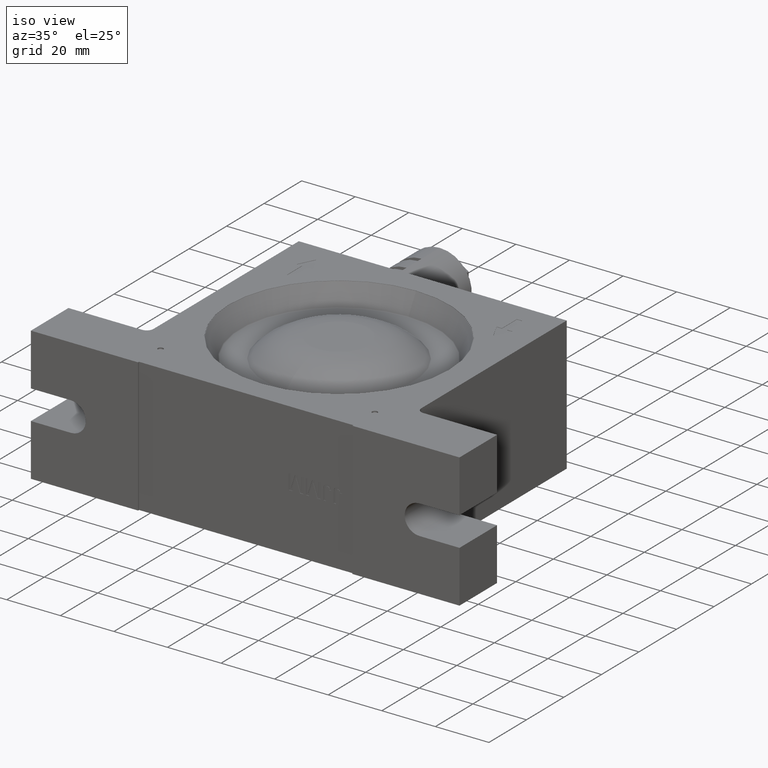
[diagram: clean part render]
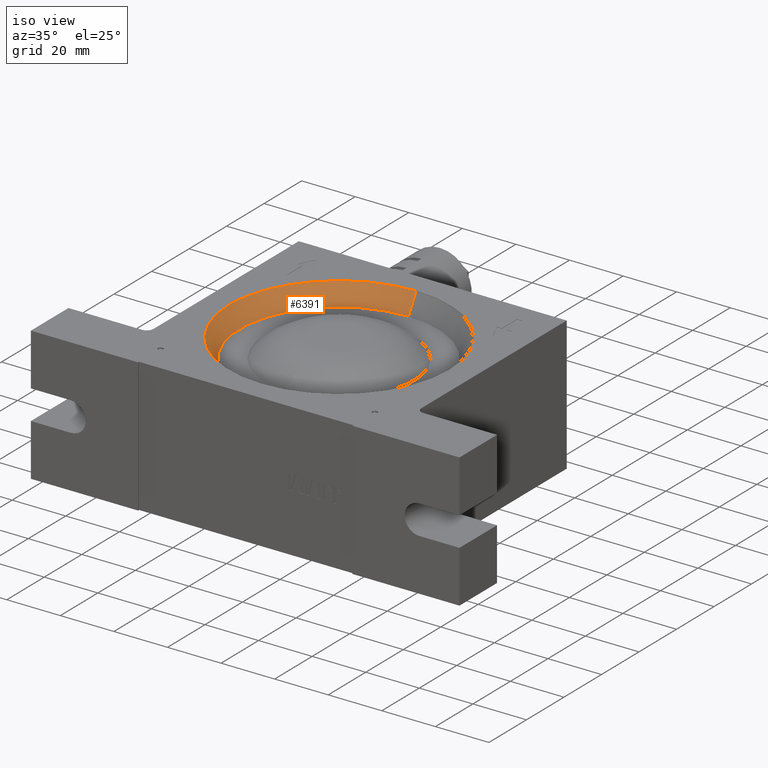
[diagram: same view with one face highlighted and labeled with its STEP entity id]
A machine part, iso view. The second image highlights one B-rep face of the part: STEP entity #6391.
In plain terms, the highlighted conical surface has half-angle 30 deg.
Its self-contained STEP definition (entity closure, byte-faithful):
#104 = LINE ( 'NONE', #6241, #280 ) ;
#280 = VECTOR ( 'NONE', #4174, 1000.000000000000000 ) ;
#383 = VERTEX_POINT ( 'NONE', #2256 ) ;
#533 = ORIENTED_EDGE ( 'NONE', *, *, #1843, .T. ) ;
#637 = ORIENTED_EDGE ( 'NONE', *, *, #3783, .T. ) ;
#649 = DIRECTION ( 'NONE',  ( 9.071690638293561100E-017, 0.4999999999999996100, 0.8660254037844389300 ) ) ;
#659 = CARTESIAN_POINT ( 'NONE',  ( -1.098493650755524200E-014, -41.08758437086788000, 25.00000000000000700 ) ) ;
#685 = DIRECTION ( 'NONE',  ( 8.602726321297810600E-018, 1.224606353822375800E-016, 1.000000000000000000 ) ) ;
#964 = EDGE_CURVE ( 'NONE', #383, #3484, #104, .T. ) ;
#996 = VERTEX_POINT ( 'NONE', #4122 ) ;
#1469 = ORIENTED_EDGE ( 'NONE', *, *, #964, .F. ) ;
#1611 = CIRCLE ( 'NONE', #6082, 37.04613248654055000 ) ;
#1843 = EDGE_CURVE ( 'NONE', #5592, #3484, #5503, .T. ) ;
#2256 = CARTESIAN_POINT ( 'NONE',  ( -1.043106002386019100E-014, -37.04613248654055000, 18.00000000000000400 ) ) ;
#2739 = DIRECTION ( 'NONE',  ( 1.665334536937734800E-016, 1.000000000000000000, -9.365206889583195800E-017 ) ) ;
#3078 = DIRECTION ( 'NONE',  ( 1.665334536937734800E-016, 1.000000000000000000, -8.444027569587509400E-017 ) ) ;
#3290 = CARTESIAN_POINT ( 'NONE',  ( 8.290796058586279900E-016, -2.585824891883359800E-015, 18.00000000000000000 ) ) ;
#3350 = ORIENTED_EDGE ( 'NONE', *, *, #3955, .T. ) ;
#3370 = CARTESIAN_POINT ( 'NONE',  ( 8.269289242783040000E-016, -2.616440050728920100E-015, 17.75000000000000000 ) ) ;
#3479 = DIRECTION ( 'NONE',  ( 1.665334536937734600E-016, 1.000000000000000000, -9.401837931044403000E-017 ) ) ;
#3484 = VERTEX_POINT ( 'NONE', #659 ) ;
#3783 = EDGE_CURVE ( 'NONE', #383, #996, #1611, .T. ) ;
#3883 = CARTESIAN_POINT ( 'NONE',  ( 6.972312279679199700E-015, 36.90179491924310200, 17.74999999999999600 ) ) ;
#3955 = EDGE_CURVE ( 'NONE', #996, #5592, #4661, .T. ) ;
#4122 = CARTESIAN_POINT ( 'NONE',  ( 6.998499994839326000E-015, 37.04613248654055000, 17.99999999999999600 ) ) ;
#4174 = DIRECTION ( 'NONE',  ( -1.370488872682053100E-016, -0.4999999999999993300, 0.8660254037844390400 ) ) ;
#4285 = DIRECTION ( 'NONE',  ( -8.602726321297810600E-018, -1.224606353822375800E-016, -1.000000000000000000 ) ) ;
#4315 = EDGE_LOOP ( 'NONE', ( #1469, #637, #3350, #533 ) ) ;
#4661 = LINE ( 'NONE', #3883, #5159 ) ;
#4825 = CARTESIAN_POINT ( 'NONE',  ( 7.731756019322649300E-015, 41.08758437086788000, 24.99999999999999300 ) ) ;
#4895 = AXIS2_PLACEMENT_3D ( 'NONE', #5716, #6305, #3078 ) ;
#5019 = FACE_OUTER_BOUND ( 'NONE', #4315, .T. ) ;
#5159 = VECTOR ( 'NONE', #649, 999.9999999999998900 ) ;
#5271 = CONICAL_SURFACE ( 'NONE', #6321, 36.90179491924310200, 0.5235987755982982600 ) ;
#5503 = CIRCLE ( 'NONE', #4895, 41.08758437086790100 ) ;
#5592 = VERTEX_POINT ( 'NONE', #4825 ) ;
#5716 = CARTESIAN_POINT ( 'NONE',  ( 8.892986901077129600E-016, -1.728600444207695000E-015, 25.00000000000000000 ) ) ;
#6082 = AXIS2_PLACEMENT_3D ( 'NONE', #3290, #4285, #2739 ) ;
#6241 = CARTESIAN_POINT ( 'NONE',  ( -9.837620934186905800E-015, -36.90179491924310200, 17.75000000000000400 ) ) ;
#6305 = DIRECTION ( 'NONE',  ( 8.602726321297810600E-018, 1.224606353822375800E-016, 1.000000000000000000 ) ) ;
#6321 = AXIS2_PLACEMENT_3D ( 'NONE', #3370, #685, #3479 ) ;
#6391 = ADVANCED_FACE ( 'NONE', ( #5019 ), #5271, .F. ) ;